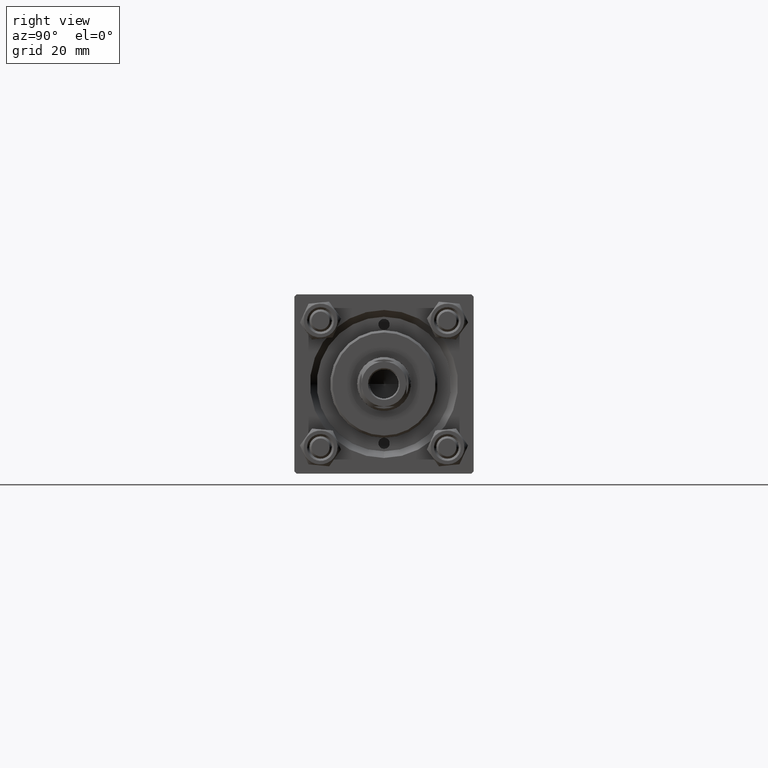
[diagram: clean part render]
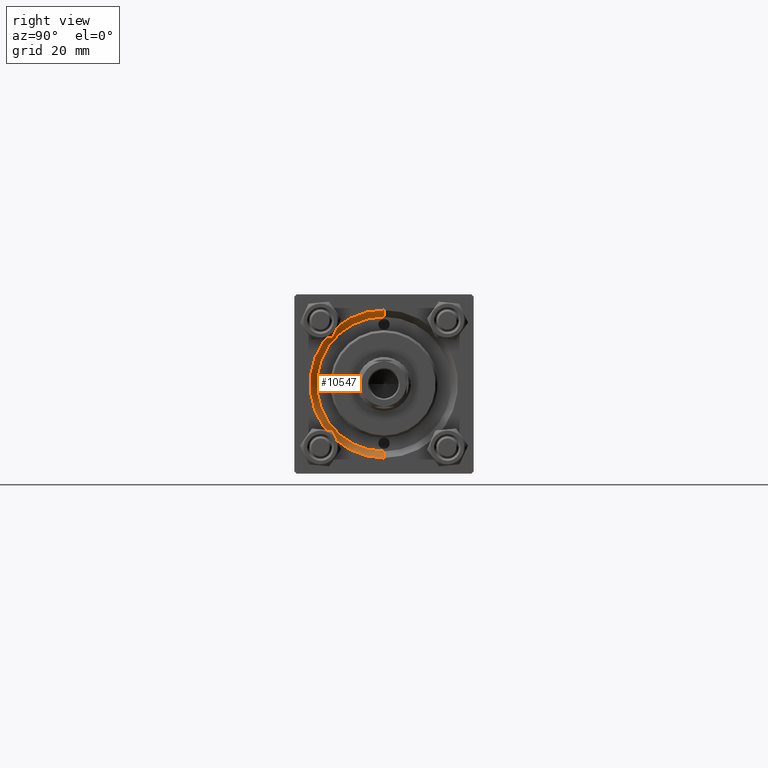
[diagram: same view with one face highlighted and labeled with its STEP entity id]
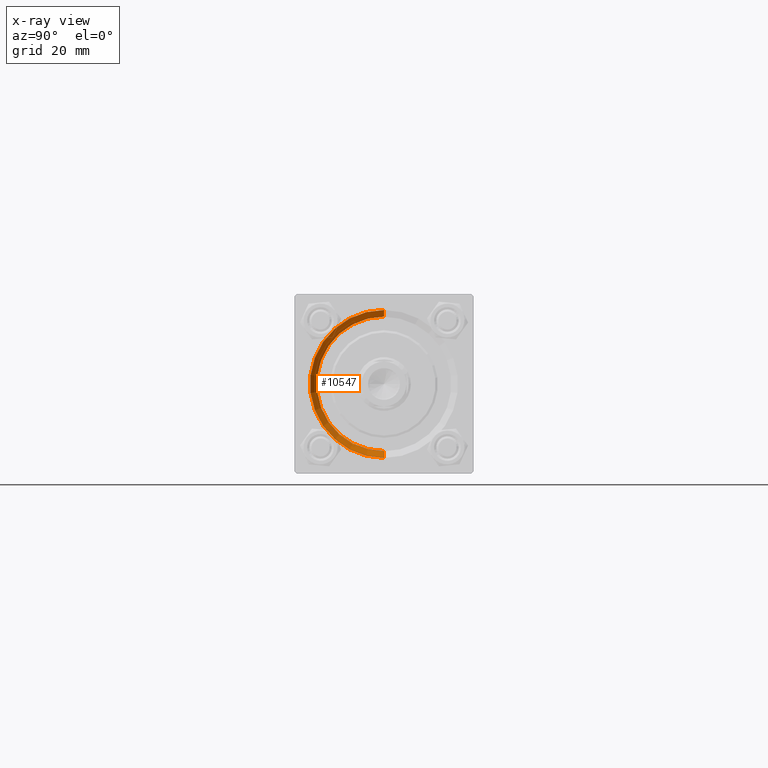
[diagram: x-ray of the same camera — body ghosted, the highlighted face saturated]
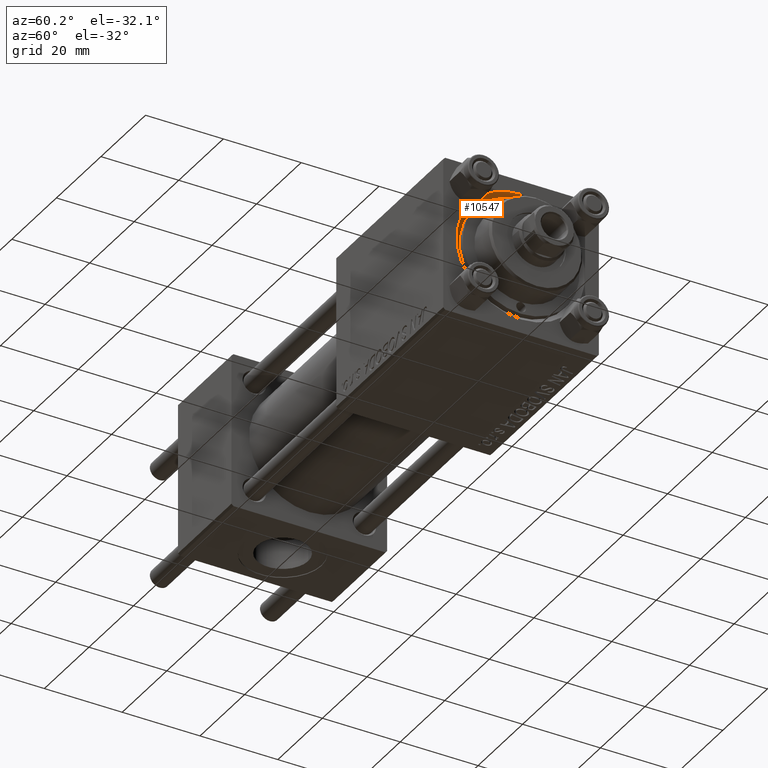
[diagram: same view with one face highlighted and labeled with its STEP entity id]
A machine part, right view. The second image highlights one B-rep face of the part: STEP entity #10547.
The next image is the same camera in x-ray: the body ghosted, the highlighted face saturated — about 0% of this face is hidden behind the body in this view.
A second angle (auxiliary view) of the same face is appended — the face is thin or edge-on in the first view.
In plain terms, the highlighted conical surface has half-angle 45 deg.
Its self-contained STEP definition (entity closure, byte-faithful):
#11 = EDGE_CURVE ( 'NONE', #20883, #20115, #6334, .T. ) ;
#1098 = DIRECTION ( 'NONE',  ( 1.000000000000000000, 0.000000000000000000, 0.000000000000000000 ) ) ;
#1631 = DIRECTION ( 'NONE',  ( 0.7071067811865474617, 0.000000000000000000, -0.7071067811865474617 ) ) ;
#2463 = CIRCLE ( 'NONE', #44383, 15.00000000000000000 ) ;
#3444 = ORIENTED_EDGE ( 'NONE', *, *, #4148, .F. ) ;
#4148 = EDGE_CURVE ( 'NONE', #46150, #33973, #2463, .T. ) ;
#6334 = CIRCLE ( 'NONE', #46649, 16.50000000000001421 ) ;
#6425 = VECTOR ( 'NONE', #1631, 1000.000000000000114 ) ;
#8925 = ORIENTED_EDGE ( 'NONE', *, *, #31180, .T. ) ;
#9177 = EDGE_LOOP ( 'NONE', ( #3444, #8925, #43129, #26434 ) ) ;
#9495 = LINE ( 'NONE', #48350, #6425 ) ;
#9971 = CARTESIAN_POINT ( 'NONE',  ( 117.5000000000000000, 0.000000000000000000, 0.000000000000000000 ) ) ;
#10547 = ADVANCED_FACE ( 'NONE', ( #16977 ), #25064, .F. ) ;
#12203 = VECTOR ( 'NONE', #12358, 1000.000000000000114 ) ;
#12358 = DIRECTION ( 'NONE',  ( 0.7071067811865474617, 8.659560562354932858E-17, 0.7071067811865474617 ) ) ;
#15717 = CARTESIAN_POINT ( 'NONE',  ( 117.5000000000000000, 1.836970198721029589E-15, 15.00000000000000000 ) ) ;
#16977 = FACE_OUTER_BOUND ( 'NONE', #9177, .T. ) ;
#19430 = CARTESIAN_POINT ( 'NONE',  ( 119.0000000000000142, 2.020667218593134678E-15, 16.50000000000001421 ) ) ;
#20115 = VERTEX_POINT ( 'NONE', #19430 ) ;
#20883 = VERTEX_POINT ( 'NONE', #46686 ) ;
#25064 = CONICAL_SURFACE ( 'NONE', #26673, 15.00000000000000000, 0.7853981633974482790 ) ;
#25395 = DIRECTION ( 'NONE',  ( 0.000000000000000000, 0.000000000000000000, 1.000000000000000000 ) ) ;
#26434 = ORIENTED_EDGE ( 'NONE', *, *, #27174, .F. ) ;
#26673 = AXIS2_PLACEMENT_3D ( 'NONE', #44248, #1098, #32364 ) ;
#27174 = EDGE_CURVE ( 'NONE', #33973, #20883, #9495, .T. ) ;
#31180 = EDGE_CURVE ( 'NONE', #46150, #20115, #34783, .T. ) ;
#32364 = DIRECTION ( 'NONE',  ( 0.000000000000000000, 0.000000000000000000, -1.000000000000000000 ) ) ;
#33973 = VERTEX_POINT ( 'NONE', #47854 ) ;
#34215 = DIRECTION ( 'NONE',  ( -1.000000000000000000, -0.000000000000000000, -0.000000000000000000 ) ) ;
#34783 = LINE ( 'NONE', #39094, #12203 ) ;
#39094 = CARTESIAN_POINT ( 'NONE',  ( 117.5000000000000000, 1.836970198721029589E-15, 15.00000000000000000 ) ) ;
#40753 = DIRECTION ( 'NONE',  ( 1.000000000000000000, 0.000000000000000000, 0.000000000000000000 ) ) ;
#41260 = DIRECTION ( 'NONE',  ( 0.000000000000000000, 0.000000000000000000, 1.000000000000000000 ) ) ;
#43129 = ORIENTED_EDGE ( 'NONE', *, *, #11, .F. ) ;
#44248 = CARTESIAN_POINT ( 'NONE',  ( 117.5000000000000000, 0.000000000000000000, 0.000000000000000000 ) ) ;
#44383 = AXIS2_PLACEMENT_3D ( 'NONE', #9971, #40753, #41260 ) ;
#46150 = VERTEX_POINT ( 'NONE', #15717 ) ;
#46649 = AXIS2_PLACEMENT_3D ( 'NONE', #49398, #34215, #25395 ) ;
#46686 = CARTESIAN_POINT ( 'NONE',  ( 119.0000000000000142, 0.000000000000000000, -16.50000000000001421 ) ) ;
#47854 = CARTESIAN_POINT ( 'NONE',  ( 117.5000000000000000, 0.000000000000000000, -15.00000000000000000 ) ) ;
#48350 = CARTESIAN_POINT ( 'NONE',  ( 117.5000000000000000, 0.000000000000000000, -15.00000000000000000 ) ) ;
#49398 = CARTESIAN_POINT ( 'NONE',  ( 119.0000000000000142, 0.000000000000000000, 0.000000000000000000 ) ) ;